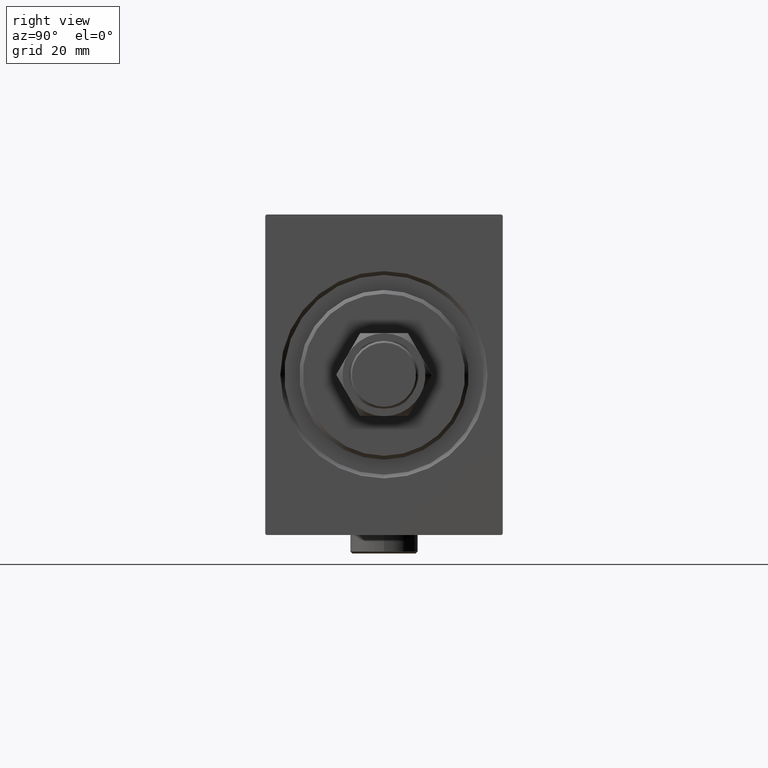
[diagram: clean part render]
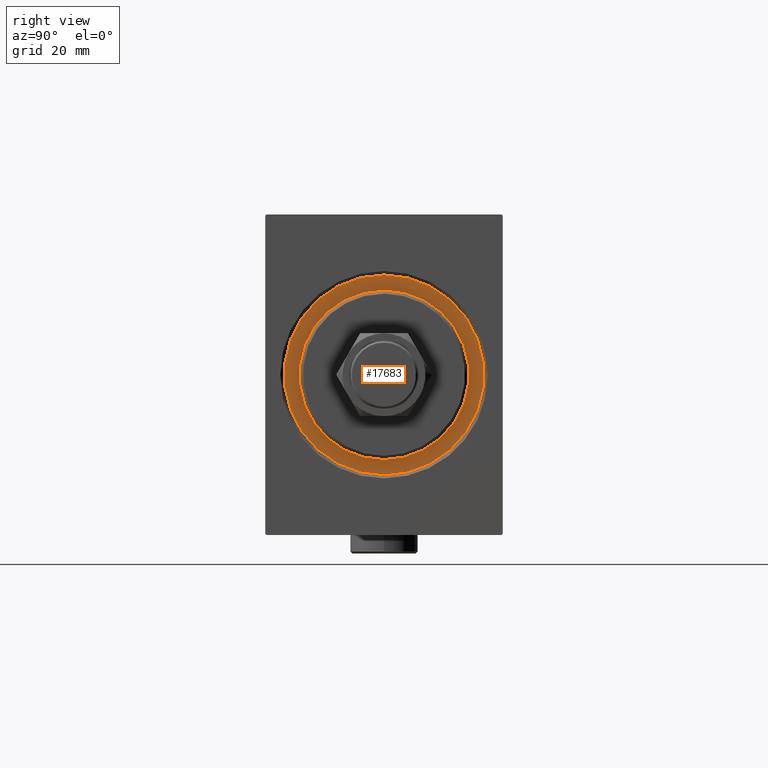
[diagram: same view with one face highlighted and labeled with its STEP entity id]
A machine part, right view. The second image highlights one B-rep face of the part: STEP entity #17683.
In plain terms, the highlighted planar face has unit normal (1, 0, 0).
Its self-contained STEP definition (entity closure, byte-faithful):
#527 = ORIENTED_EDGE ( 'NONE', *, *, #12362, .T. ) ;
#1116 = EDGE_LOOP ( 'NONE', ( #41790, #14791 ) ) ;
#3466 = AXIS2_PLACEMENT_3D ( 'NONE', #31719, #10078, #42416 ) ;
#3483 = DIRECTION ( 'NONE',  ( 1.000000000000000000, 0.000000000000000000, 0.000000000000000000 ) ) ;
#7021 = VERTEX_POINT ( 'NONE', #32040 ) ;
#7732 = EDGE_LOOP ( 'NONE', ( #28591, #527 ) ) ;
#7811 = DIRECTION ( 'NONE',  ( 1.000000000000000000, 0.000000000000000000, 0.000000000000000000 ) ) ;
#8528 = DIRECTION ( 'NONE',  ( 0.000000000000000000, 0.000000000000000000, -1.000000000000000000 ) ) ;
#9821 = EDGE_CURVE ( 'NONE', #7021, #28927, #17556, .T. ) ;
#10078 = DIRECTION ( 'NONE',  ( 1.000000000000000000, -0.000000000000000000, 0.000000000000000000 ) ) ;
#12362 = EDGE_CURVE ( 'NONE', #29545, #15835, #33311, .T. ) ;
#13731 = CIRCLE ( 'NONE', #40486, 22.50000000000000355 ) ;
#14092 = CARTESIAN_POINT ( 'NONE',  ( 0.000000000000000000, 0.000000000000000000, -26.50000000000000355 ) ) ;
#14791 = ORIENTED_EDGE ( 'NONE', *, *, #9821, .F. ) ;
#14950 = DIRECTION ( 'NONE',  ( 1.000000000000000000, 0.000000000000000000, 0.000000000000000000 ) ) ;
#15835 = VERTEX_POINT ( 'NONE', #14092 ) ;
#17556 = CIRCLE ( 'NONE', #3466, 22.50000000000000355 ) ;
#17580 = DIRECTION ( 'NONE',  ( 0.000000000000000000, 0.000000000000000000, -1.000000000000000000 ) ) ;
#17683 = ADVANCED_FACE ( 'NONE', ( #32946, #39685 ), #32717, .T. ) ;
#18774 = CARTESIAN_POINT ( 'NONE',  ( 0.000000000000000000, 0.000000000000000000, 0.000000000000000000 ) ) ;
#19828 = CARTESIAN_POINT ( 'NONE',  ( 0.000000000000000000, 3.245314017740486554E-15, 26.50000000000000355 ) ) ;
#20284 = EDGE_CURVE ( 'NONE', #28927, #7021, #13731, .T. ) ;
#22146 = DIRECTION ( 'NONE',  ( 0.000000000000000000, 0.000000000000000000, -1.000000000000000000 ) ) ;
#22533 = AXIS2_PLACEMENT_3D ( 'NONE', #25719, #7811, #29458 ) ;
#22883 = AXIS2_PLACEMENT_3D ( 'NONE', #18774, #3483, #8528 ) ;
#24788 = DIRECTION ( 'NONE',  ( 1.000000000000000000, -0.000000000000000000, 0.000000000000000000 ) ) ;
#25719 = CARTESIAN_POINT ( 'NONE',  ( 0.000000000000000000, 0.000000000000000000, 0.000000000000000000 ) ) ;
#28180 = AXIS2_PLACEMENT_3D ( 'NONE', #36355, #14950, #22146 ) ;
#28591 = ORIENTED_EDGE ( 'NONE', *, *, #35255, .T. ) ;
#28759 = CARTESIAN_POINT ( 'NONE',  ( 0.000000000000000000, 0.000000000000000000, 0.000000000000000000 ) ) ;
#28927 = VERTEX_POINT ( 'NONE', #45342 ) ;
#29458 = DIRECTION ( 'NONE',  ( 0.000000000000000000, 0.000000000000000000, -1.000000000000000000 ) ) ;
#29545 = VERTEX_POINT ( 'NONE', #19828 ) ;
#31106 = CIRCLE ( 'NONE', #28180, 26.50000000000000355 ) ;
#31719 = CARTESIAN_POINT ( 'NONE',  ( 0.000000000000000000, 0.000000000000000000, 0.000000000000000000 ) ) ;
#32040 = CARTESIAN_POINT ( 'NONE',  ( 0.000000000000000000, 2.755455298081545172E-15, -22.50000000000000355 ) ) ;
#32717 = PLANE ( 'NONE',  #22533 ) ;
#32946 = FACE_BOUND ( 'NONE', #1116, .T. ) ;
#33311 = CIRCLE ( 'NONE', #22883, 26.50000000000000355 ) ;
#35255 = EDGE_CURVE ( 'NONE', #15835, #29545, #31106, .T. ) ;
#36355 = CARTESIAN_POINT ( 'NONE',  ( 0.000000000000000000, 0.000000000000000000, 0.000000000000000000 ) ) ;
#39685 = FACE_OUTER_BOUND ( 'NONE', #7732, .T. ) ;
#40486 = AXIS2_PLACEMENT_3D ( 'NONE', #28759, #24788, #17580 ) ;
#41790 = ORIENTED_EDGE ( 'NONE', *, *, #20284, .F. ) ;
#42416 = DIRECTION ( 'NONE',  ( 0.000000000000000000, 0.000000000000000000, -1.000000000000000000 ) ) ;
#45342 = CARTESIAN_POINT ( 'NONE',  ( 0.000000000000000000, 0.000000000000000000, 22.50000000000000355 ) ) ;